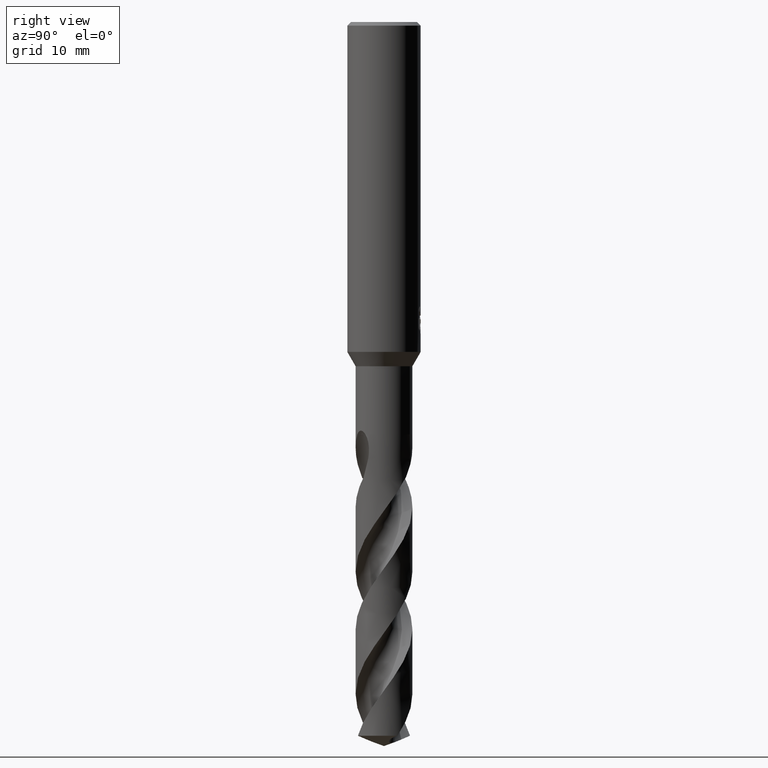
[diagram: clean part render]
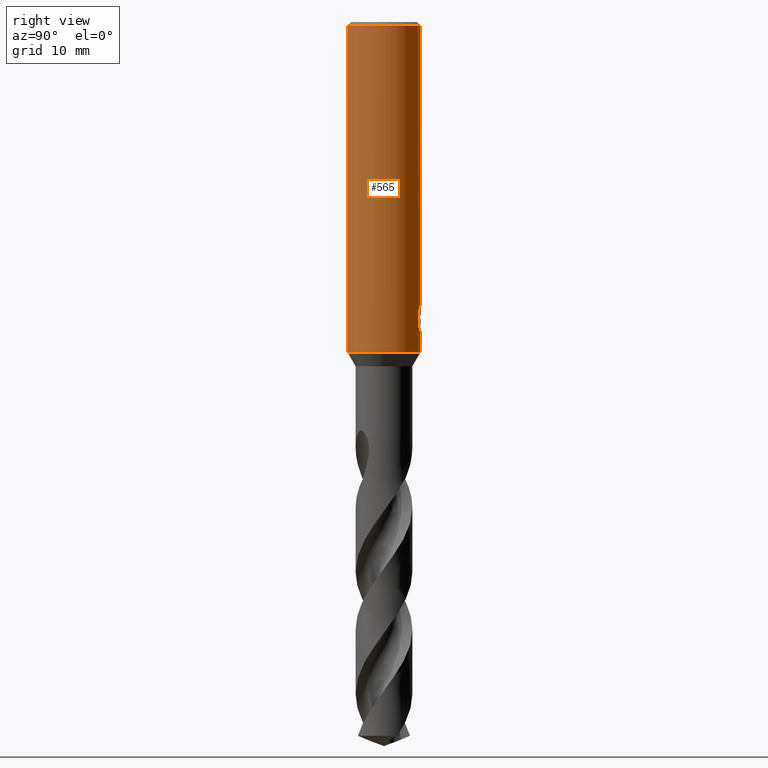
[diagram: same view with one face highlighted and labeled with its STEP entity id]
A machine part, right view. The second image highlights one B-rep face of the part: STEP entity #565.
In plain terms, the highlighted cylindrical surface (partial cylindrical patch) has radius 4 mm, axis along (-0, -0, 1).
Its self-contained STEP definition (entity closure, byte-faithful):
#277=VERTEX_POINT('',#770);
#317=VERTEX_POINT('',#813);
#323=EDGE_CURVE('',#663,#369,#820,.T.);
#341=EDGE_CURVE('',#317,#397,#839,.T.);
#347=VERTEX_POINT('',#845);
#351=EDGE_CURVE('',#397,#577,#849,.T.);
#369=VERTEX_POINT('',#868);
#395=VERTEX_POINT('',#895);
#397=VERTEX_POINT('',#897);
#483=VERTEX_POINT('',#993);
#495=EDGE_CURVE('',#395,#597,#1006,.T.);
#541=EDGE_CURVE('',#649,#395,#1056,.T.);
#565=ADVANCED_FACE('',(#1083),#1084,.T.);
#577=VERTEX_POINT('',#1098);
#589=EDGE_CURVE('',#347,#483,#1111,.T.);
#597=VERTEX_POINT('',#1120);
#607=EDGE_CURVE('',#277,#649,#1132,.T.);
#649=VERTEX_POINT('',#1179);
#663=VERTEX_POINT('',#1194);
#673=EDGE_CURVE('',#597,#733,#1204,.T.);
#675=EDGE_CURVE('',#369,#483,#1206,.T.);
#693=EDGE_CURVE('',#347,#733,#1226,.T.);
#701=EDGE_CURVE('',#577,#277,#1234,.T.);
#729=EDGE_CURVE('',#317,#663,#1264,.T.);
#733=VERTEX_POINT('',#1268);
#770=CARTESIAN_POINT('',(0.873560781758956,3.90344611344549,-33.7587351791531));
#813=CARTESIAN_POINT('',(-6.37761657961682E-016,4.0,-34.0310253601033));
#820=CIRCLE('',#1564,4.0);
#839=B_SPLINE_CURVE_WITH_KNOTS('',3,(#1592,#1593,#1594,#1595,#1596,#1597,#1598,#1599,#1600,#1601,#1602,#1603,#1604,#1605,#1606,#1607),.UNSPECIFIED.,.F.,.F.,(4,2,2,2,2,2,2,4),(5.59330412183837,6.21519943861119,6.52611580040833,6.83703216220547,7.14794852400261,7.45886488579976,7.76904377517712,8.07922266455448),.UNSPECIFIED.);
#845=CARTESIAN_POINT('',(0.0,4.0,-0.399999999999999));
#849=ELLIPSE('',#1639,12.1919782934791,4.0);
#868=CARTESIAN_POINT('',(4.89842541528951E-016,-4.0,-36.0));
#895=CARTESIAN_POINT('',(1.33721006514658,3.76986329217263,-31.5150484364821));
#897=CARTESIAN_POINT('',(0.29010312703583,3.98946615171554,-33.9998328990228));
#993=CARTESIAN_POINT('',(4.89842541528951E-016,-4.0,-0.399999999999999));
#1006=B_SPLINE_CURVE_WITH_KNOTS('',3,(#3386,#3387,#3388,#3389,#3390,#3391,#3392,#3393,#3394,#3395),.UNSPECIFIED.,.F.,.F.,(4,2,2,2,4),(0.621618550720989,0.932427826081483,1.24323710144198,1.55341597198189,1.8635948425218),.UNSPECIFIED.);
#1056=LINE('',#3593,#3594);
#1083=FACE_OUTER_BOUND('',#4447,.T.);
#1084=CYLINDRICAL_SURFACE('',#4448,4.0);
#1098=CARTESIAN_POINT('',(0.873560781758957,3.90344611344549,-32.3198931596091));
#1111=CIRCLE('',#4512,4.0);
#1120=CARTESIAN_POINT('',(0.799431726384364,3.91929954390451,-31.000000276873));
#1132=B_SPLINE_CURVE_WITH_KNOTS('',3,(#4535,#4536,#4537,#4538,#4539,#4540,#4541,#4542,#4543,#4544),.UNSPECIFIED.,.F.,.F.,(4,2,2,2,4),(8.07922159159579,8.38940045176896,8.69957931194214,9.01038857642139,9.32119784090064),.UNSPECIFIED.);
#1179=CARTESIAN_POINT('',(1.33721006514658,3.76986329217263,-33.2901657003257));
#1194=CARTESIAN_POINT('',(0.0,4.0,-36.0));
#1204=B_SPLINE_CURVE_WITH_KNOTS('',3,(#4966,#4967,#4968,#4969,#4970,#4971,#4972,#4973,#4974,#4975,#4976,#4977,#4978,#4979,#4980,#4981,#4982,#4983,#4984,#4985,#4986,#4987,#4988,#4989,#4990,#4991,#4992),.UNSPECIFIED.,.F.,.F.,(4,2,3,2,2,2,2,2,2,2,2,2,4),(-0.543018145553855,-0.271509072776928,0.0,0.271509072776927,0.543018145553855,0.815414280910791,1.08781041626773,1.35870467547365,1.62959893467958,1.90093601549038,2.17227309630118,2.44361017711198,2.71494725792278),.UNSPECIFIED.);
#1206=LINE('',#4995,#4996);
#1226=LINE('',#5046,#5047);
#1234=LINE('',#5058,#5059);
#1264=LINE('',#5332,#5333);
#1268=CARTESIAN_POINT('',(0.0,4.0,-32.0232688117743));
#1564=AXIS2_PLACEMENT_3D('',#5433,#5434,#5435);
#1592=CARTESIAN_POINT('',(-1.53169074080201,3.69512157777541,-33.0291469804961));
#1593=CARTESIAN_POINT('',(-1.44828662161398,3.72969396308271,-33.2292685117474));
#1594=CARTESIAN_POINT('',(-1.3235119204923,3.77766697431007,-33.4106519059977));
#1595=CARTESIAN_POINT('',(-1.10876972720289,3.84398770228913,-33.6255223555534));
#1596=CARTESIAN_POINT('',(-1.02784628500841,3.86675406900514,-33.6929304922165));
#1597=CARTESIAN_POINT('',(-0.851215741256186,3.9094356085587,-33.8121513963803));
#1598=CARTESIAN_POINT('',(-0.755506440008018,3.92931563110609,-33.8639734861066));
#1599=CARTESIAN_POINT('',(-0.55516132520436,3.96258844897707,-33.9475385932463));
#1600=CARTESIAN_POINT('',(-0.450345578096092,3.97598591776774,-33.9793474763458));
#1601=CARTESIAN_POINT('',(-0.238765831475676,3.99427916347003,-34.0212208804589));
#1602=CARTESIAN_POINT('',(-0.131998351317953,3.99916459194608,-34.0312723335086));
#1603=CARTESIAN_POINT('',(0.0750281946656646,4.00063255933723,-34.0312723335086));
#1604=CARTESIAN_POINT('',(0.181611397509719,3.99727906083033,-34.0212676362976));
#1605=CARTESIAN_POINT('',(0.392937729655654,3.98206259750675,-33.9795209106323));
#1606=CARTESIAN_POINT('',(0.497684032548134,3.97021008398904,-33.9477911393989));
#1607=CARTESIAN_POINT('',(0.597825841435798,3.9550732310934,-33.9060826866649));
#1639=AXIS2_PLACEMENT_3D('',#5449,#5450,#5451);
#3386=CARTESIAN_POINT('',(1.47492143493287,3.71814560779639,-31.7759604553563));
#3387=CARTESIAN_POINT('',(1.43317985453682,3.73470372211652,-31.6758249567768));
#3388=CARTESIAN_POINT('',(1.38139934199221,3.7544274523428,-31.5801212011595));
#3389=CARTESIAN_POINT('',(1.26216864159784,3.79617175011376,-31.4033868968692));
#3390=CARTESIAN_POINT('',(1.1947060468711,3.8181497487877,-31.3223546663791));
#3391=CARTESIAN_POINT('',(1.0513319169546,3.86008660392055,-31.1790629248092));
#3392=CARTESIAN_POINT('',(0.970367433401024,3.88157055479408,-31.1117010969221));
#3393=CARTESIAN_POINT('',(0.793686081906958,3.92151314302242,-30.9925943353462));
#3394=CARTESIAN_POINT('',(0.697967348067752,3.93993643158254,-30.9408403180509));
#3395=CARTESIAN_POINT('',(0.597825544213158,3.95507327601983,-30.8991318677171));
#3593=CARTESIAN_POINT('',(1.33721006514658,3.76986329217263,-32.4026070684039));
#3594=VECTOR('',#5699,1.0);
#4447=EDGE_LOOP('',(#5727,#5728,#5729,#5730,#5731,#5732,#5733,#5734,#5735,#5736,#5737,#5738));
#4448=AXIS2_PLACEMENT_3D('',#5739,#5740,#5741);
#4512=AXIS2_PLACEMENT_3D('',#5767,#5768,#5769);
#4535=CARTESIAN_POINT('',(0.597825566619951,3.95507327263295,-33.9060822529338));
#4536=CARTESIAN_POINT('',(0.69796736707036,3.93993642812991,-33.8643738039892));
#4537=CARTESIAN_POINT('',(0.793686097648071,3.92151313976681,-33.8126197884223));
#4538=CARTESIAN_POINT('',(0.970367443122637,3.8815705522933,-33.6935130308195));
#4539=CARTESIAN_POINT('',(1.05133192391794,3.86008660197544,-33.6261512051772));
#4540=CARTESIAN_POINT('',(1.19470604884202,3.81814974811935,-33.4828594684698));
#4541=CARTESIAN_POINT('',(1.26216864117972,3.79617175021539,-33.401827240791));
#4542=CARTESIAN_POINT('',(1.38139933735972,3.75442745400946,-33.2250929426288));
#4543=CARTESIAN_POINT('',(1.43317984807825,3.73470372457547,-33.1293891903286));
#4544=CARTESIAN_POINT('',(1.47492142700079,3.7181456109429,-33.0292536952238));
#4966=CARTESIAN_POINT('',(0.665279195004375,3.9442874632428,-30.8137529884524));
#4967=CARTESIAN_POINT('',(0.72877088492158,3.9335783806135,-30.8773526603125));
#4968=CARTESIAN_POINT('',(0.783944488018489,3.92260552826083,-30.957920893425));
#4969=CARTESIAN_POINT('',(0.857267073993339,3.90723639918054,-31.134802544027));
#4970=CARTESIAN_POINT('',(0.875400981188567,3.90303383563787,-31.2311389883278));
#4971=CARTESIAN_POINT('',(0.875400981188567,3.90303383563787,-31.3216420125868));
#4972=CARTESIAN_POINT('',(0.875400981188567,3.90303383563787,-31.4121450368458));
#4973=CARTESIAN_POINT('',(0.857267073993339,3.90723639918054,-31.5084814811466));
#4974=CARTESIAN_POINT('',(0.783944488018488,3.92260552826083,-31.6853631317485));
#4975=CARTESIAN_POINT('',(0.728770884921581,3.9335783806135,-31.765931364861));
#4976=CARTESIAN_POINT('',(0.601580067811904,3.95503153411898,-31.8933384986505));
#4977=CARTESIAN_POINT('',(0.520902117238449,3.96693827151805,-31.9487071231089));
#4978=CARTESIAN_POINT('',(0.343752086871948,3.98619778335453,-32.0223037477669));
#4979=CARTESIAN_POINT('',(0.247255556938652,3.99338316413851,-32.0405166027747));
#4980=CARTESIAN_POINT('',(0.0662974670001867,4.00046977119903,-32.0405166027747));
#4981=CARTESIAN_POINT('',(-0.0299674229107091,4.00086780861984,-32.0224830783564));
#4982=CARTESIAN_POINT('',(-0.206991592502204,3.99562207288533,-31.9491870835923));
#4983=CARTESIAN_POINT('',(-0.287758268875903,3.99014940483369,-31.8939303320089));
#4984=CARTESIAN_POINT('',(-0.415384305359873,3.97889009382894,-31.7664425414649));
#4985=CARTESIAN_POINT('',(-0.470753835570468,3.9723749730993,-31.6856442592887));
#4986=CARTESIAN_POINT('',(-0.544239101864661,3.96297563900076,-31.5084730190186));
#4987=CARTESIAN_POINT('',(-0.562348199187247,3.96027328638705,-31.4120877061904));
#4988=CARTESIAN_POINT('',(-0.562348199187247,3.96027328638705,-31.2311963189832));
#4989=CARTESIAN_POINT('',(-0.544239101864661,3.96297563900076,-31.134811006155));
#4990=CARTESIAN_POINT('',(-0.470753835570468,3.9723749730993,-30.9576397658849));
#4991=CARTESIAN_POINT('',(-0.415384305359873,3.97889009382894,-30.8768414837086));
#4992=CARTESIAN_POINT('',(-0.351519173230209,3.98452434687649,-30.8130455309993));
#4995=CARTESIAN_POINT('',(4.89842541528951E-016,-4.0,-18.2));
#4996=VECTOR('',#5878,1.0);
#5046=CARTESIAN_POINT('',(-4.89842541528951E-016,4.0,-18.2));
#5047=VECTOR('',#5901,1.0);
#5058=CARTESIAN_POINT('',(0.873560781758957,3.90344611344549,-33.0393141693811));
#5059=VECTOR('',#5903,1.0);
#5332=CARTESIAN_POINT('',(-4.89842541528951E-016,4.0,-18.2));
#5333=VECTOR('',#5935,1.0);
#5433=CARTESIAN_POINT('',(0.0,0.0,-36.0));
#5434=DIRECTION('',(0.0,0.0,-1.0));
#5435=DIRECTION('',(0.0,1.0,0.0));
#5449=CARTESIAN_POINT('',(0.0,0.0,-34.8351219173269));
#5450=DIRECTION('',(0.944648353914092,0.0,-0.328084573619969));
#5451=DIRECTION('',(0.328084573619968,-0.0,0.944648353914092));
#5699=DIRECTION('',(-0.0,-0.0,1.0));
#5727=ORIENTED_EDGE('',*,*,#693,.F.);
#5728=ORIENTED_EDGE('',*,*,#589,.T.);
#5729=ORIENTED_EDGE('',*,*,#675,.F.);
#5730=ORIENTED_EDGE('',*,*,#323,.F.);
#5731=ORIENTED_EDGE('',*,*,#729,.F.);
#5732=ORIENTED_EDGE('',*,*,#341,.T.);
#5733=ORIENTED_EDGE('',*,*,#351,.T.);
#5734=ORIENTED_EDGE('',*,*,#701,.T.);
#5735=ORIENTED_EDGE('',*,*,#607,.T.);
#5736=ORIENTED_EDGE('',*,*,#541,.T.);
#5737=ORIENTED_EDGE('',*,*,#495,.T.);
#5738=ORIENTED_EDGE('',*,*,#673,.T.);
#5739=CARTESIAN_POINT('',(0.0,0.0,-18.2));
#5740=DIRECTION('',(-0.0,-0.0,1.0));
#5741=DIRECTION('',(0.0,1.0,0.0));
#5767=CARTESIAN_POINT('',(0.0,0.0,-0.399999999999999));
#5768=DIRECTION('',(0.0,0.0,-1.0));
#5769=DIRECTION('',(0.0,1.0,0.0));
#5878=DIRECTION('',(-0.0,-0.0,1.0));
#5901=DIRECTION('',(0.0,0.0,-1.0));
#5903=DIRECTION('',(0.0,0.0,-1.0));
#5935=DIRECTION('',(0.0,0.0,-1.0));